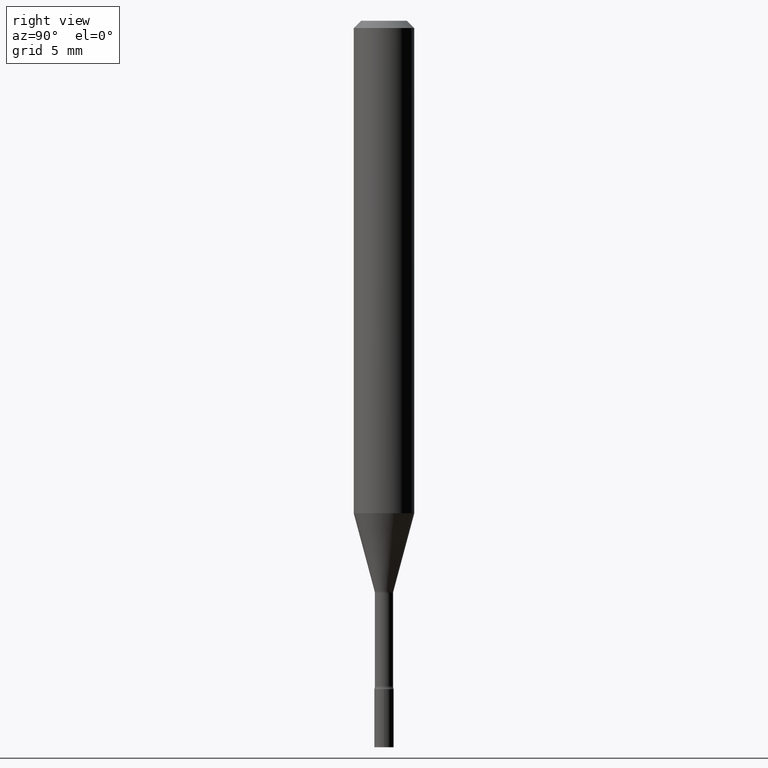
[diagram: clean part render]
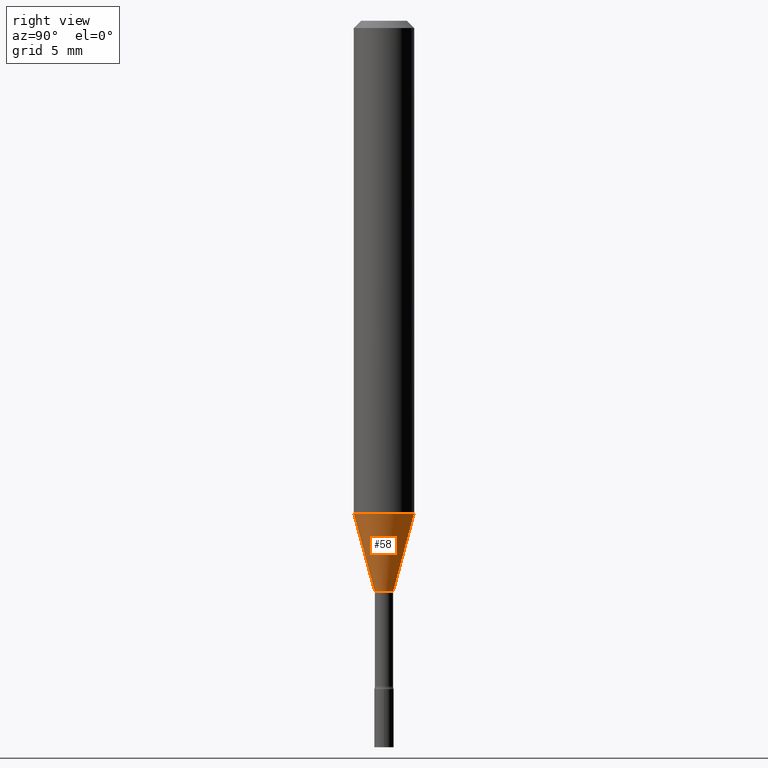
[diagram: same view with one face highlighted and labeled with its STEP entity id]
A machine part, right view. The second image highlights one B-rep face of the part: STEP entity #58.
In plain terms, the highlighted conical surface has half-angle 15 deg.
Its self-contained STEP definition (entity closure, byte-faithful):
#11 = ORIENTED_EDGE ( 'NONE', *, *, #485, .F. ) ;
#17 = DIRECTION ( 'NONE',  ( -1.807323732225328562E-15, -0.2588190451025179639, 0.9659258262890690894 ) ) ;
#18 = EDGE_LOOP ( 'NONE', ( #274, #313, #487, #11 ) ) ;
#47 = CARTESIAN_POINT ( 'NONE',  ( 2.906514588320573934E-16, 0.01931111260565986434, -1.178092501787273205 ) ) ;
#48 = CIRCLE ( 'NONE', #88, 0.06250000000000000000 ) ;
#49 = DIRECTION ( 'NONE',  ( -2.445495417718738301E-29, 3.491443229612393590E-15, 1.000000000000000000 ) ) ;
#50 = FACE_OUTER_BOUND ( 'NONE', #18, .T. ) ;
#53 = VERTEX_POINT ( 'NONE', #73 ) ;
#58 = ADVANCED_FACE ( 'NONE', ( #50 ), #118, .T. ) ;
#73 = CARTESIAN_POINT ( 'NONE',  ( -4.364351673553668696E-16, -0.06250000000000356659, -1.016909379709240335 ) ) ;
#87 = EDGE_CURVE ( 'NONE', #53, #466, #48, .T. ) ;
#88 = AXIS2_PLACEMENT_3D ( 'NONE', #370, #49, #134 ) ;
#117 = CARTESIAN_POINT ( 'NONE',  ( -1.348487785899195480E-16, -0.01931111260566809387, -1.178092501787273205 ) ) ;
#118 = CONICAL_SURFACE ( 'NONE', #333, 0.01931111260566397911, 0.2617993877991500740 ) ;
#121 = VERTEX_POINT ( 'NONE', #47 ) ;
#134 = DIRECTION ( 'NONE',  ( -6.982962677686265922E-15, -1.000000000000000000, 4.370956789862821150E-15 ) ) ;
#170 = CARTESIAN_POINT ( 'NONE',  ( 2.881019814769580720E-29, -4.113243089222302259E-15, -1.178092501787273205 ) ) ;
#179 = DIRECTION ( 'NONE',  ( -6.982962677686265922E-15, -1.000000000000000000, 0.000000000000000000 ) ) ;
#210 = LINE ( 'NONE', #398, #430 ) ;
#252 = DIRECTION ( 'NONE',  ( -2.445495417718738301E-29, 3.491443229612393590E-15, 1.000000000000000000 ) ) ;
#257 = DIRECTION ( 'NONE',  ( -2.445495417718738301E-29, 3.491443229612393590E-15, 1.000000000000000000 ) ) ;
#274 = ORIENTED_EDGE ( 'NONE', *, *, #299, .T. ) ;
#288 = EDGE_CURVE ( 'NONE', #121, #466, #503, .T. ) ;
#295 = DIRECTION ( 'NONE',  ( -6.982962677686265922E-15, -1.000000000000000000, 0.000000000000000000 ) ) ;
#299 = EDGE_CURVE ( 'NONE', #308, #121, #327, .T. ) ;
#302 = CARTESIAN_POINT ( 'NONE',  ( 2.881019814769580720E-29, -4.113243089222302259E-15, -1.178092501787273205 ) ) ;
#307 = DIRECTION ( 'NONE',  ( 1.839019923739598738E-15, 0.2588190451025247363, 0.9659258262890673130 ) ) ;
#308 = VERTEX_POINT ( 'NONE', #117 ) ;
#312 = CARTESIAN_POINT ( 'NONE',  ( 1.372137078140271983E-16, 0.01931111260565986434, -1.178092501787273205 ) ) ;
#313 = ORIENTED_EDGE ( 'NONE', *, *, #288, .T. ) ;
#327 = CIRCLE ( 'NONE', #395, 0.01931111260566397911 ) ;
#333 = AXIS2_PLACEMENT_3D ( 'NONE', #170, #252, #295 ) ;
#370 = CARTESIAN_POINT ( 'NONE',  ( 2.486847228314152234E-29, -3.550481368915166973E-15, -1.016909379709240557 ) ) ;
#393 = CARTESIAN_POINT ( 'NONE',  ( 4.440892098500872681E-16, 0.06249999999999643341, -1.016909379709240779 ) ) ;
#395 = AXIS2_PLACEMENT_3D ( 'NONE', #302, #257, #179 ) ;
#398 = CARTESIAN_POINT ( 'NONE',  ( -1.348487785899195480E-16, -0.01931111260566809387, -1.178092501787273205 ) ) ;
#430 = VECTOR ( 'NONE', #17, 39.37007874015748854 ) ;
#466 = VERTEX_POINT ( 'NONE', #393 ) ;
#485 = EDGE_CURVE ( 'NONE', #308, #53, #210, .T. ) ;
#487 = ORIENTED_EDGE ( 'NONE', *, *, #87, .F. ) ;
#494 = VECTOR ( 'NONE', #307, 39.37007874015748854 ) ;
#503 = LINE ( 'NONE', #312, #494 ) ;